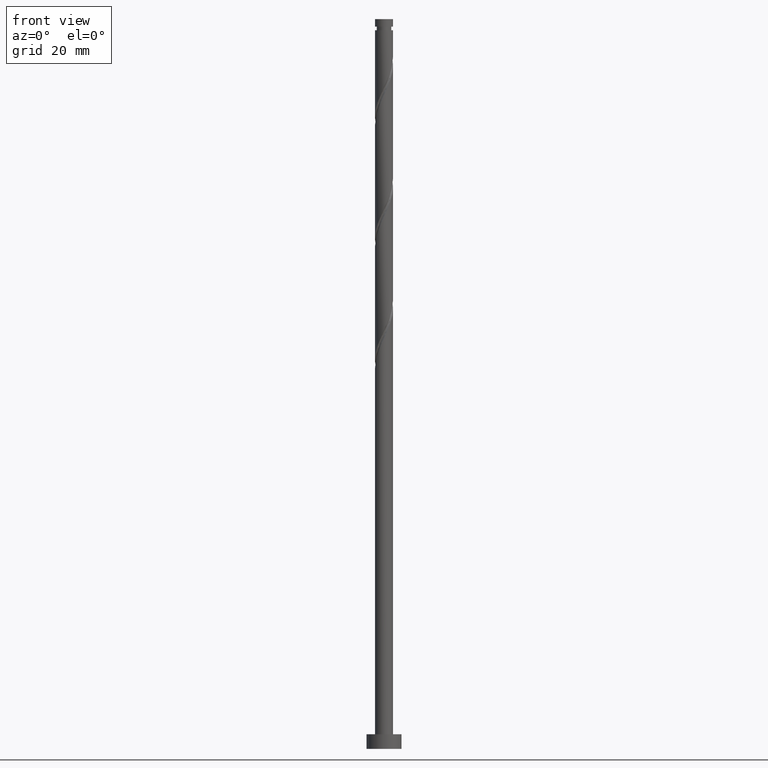
[diagram: clean part render]
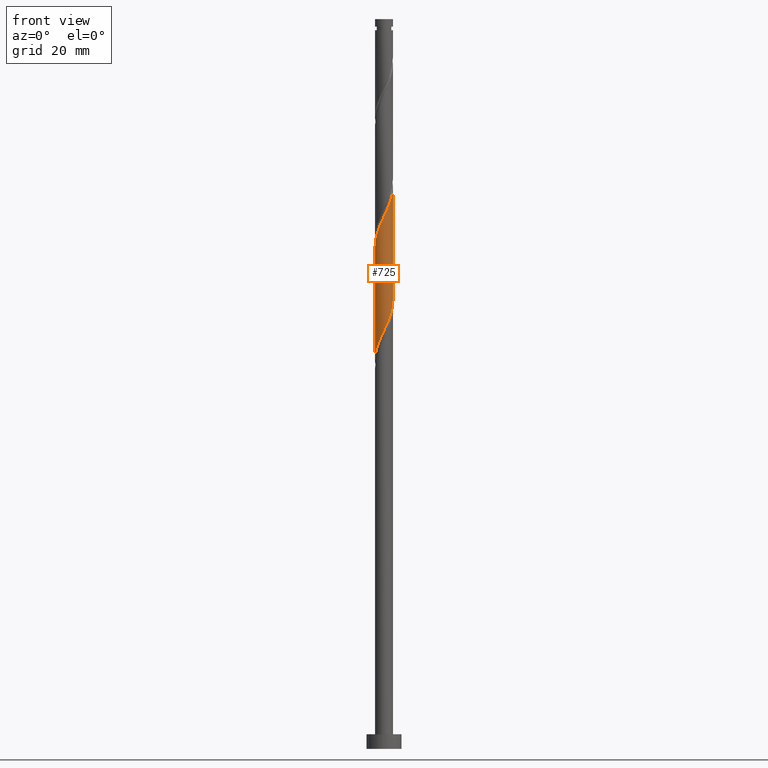
[diagram: same view with one face highlighted and labeled with its STEP entity id]
A machine part, front view. The second image highlights one B-rep face of the part: STEP entity #725.
In plain terms, the highlighted cylindrical surface (edge-blend (fillet) strip) has radius 3.1 mm, axis along (-0, -0, -1).
Its self-contained STEP definition (entity closure, byte-faithful):
#6 = CARTESIAN_POINT ( 'NONE',  ( 2.249877174969360460, -2.165579781819279237, 187.6870312759285753 ) ) ;
#21 = CARTESIAN_POINT ( 'NONE',  ( 0.2480122259768770543, -3.112904275694731826, 182.8793389682362545 ) ) ;
#68 = CARTESIAN_POINT ( 'NONE',  ( 0.000000000000000000, 0.000000000000000000, 250.0000000000000000 ) ) ;
#98 = CARTESIAN_POINT ( 'NONE',  ( 0.1280745435953551115, -3.097353210611092145, 143.6165184554157292 ) ) ;
#107 = CARTESIAN_POINT ( 'NONE',  ( -1.326007432615845527, -2.802089272069598014, 140.4113902502875533 ) ) ;
#119 = CARTESIAN_POINT ( 'NONE',  ( -3.059332338079530089, -0.5004854095583951556, 134.0011338400311161 ) ) ;
#136 = EDGE_CURVE ( 'NONE', #364, #781, #541, .T. ) ;
#137 = CARTESIAN_POINT ( 'NONE',  ( 1.227034829342569244, -2.871596876557147571, 146.0203646092619465 ) ) ;
#157 = CARTESIAN_POINT ( 'NONE',  ( 1.666242669196356774, -2.641082819833930451, 186.0844671733644873 ) ) ;
#160 = CARTESIAN_POINT ( 'NONE',  ( 3.099999999999999645, 4.112883096653824920E-15, 153.7585428954102440 ) ) ;
#178 = CARTESIAN_POINT ( 'NONE',  ( -1.227034829342573019, -2.871596876557151123, 179.6742107631080216 ) ) ;
#242 = CARTESIAN_POINT ( 'NONE',  ( -2.476317086136642143, -1.864900450133393450, 137.2062620451593205 ) ) ;
#275 = CARTESIAN_POINT ( 'NONE',  ( -0.6168922110061065833, -3.037999999999998924, 142.0139543528516697 ) ) ;
#292 = CARTESIAN_POINT ( 'NONE',  ( -3.090207698699935168, -0.2462039376120586376, 172.4626723015696257 ) ) ;
#350 = EDGE_CURVE ( 'NONE', #781, #1571, #1770, .T. ) ;
#363 = CARTESIAN_POINT ( 'NONE',  ( -3.099999999999999201, 3.260394600256485574E-15, 132.9252095620768159 ) ) ;
#364 = VERTEX_POINT ( 'NONE', #1095 ) ;
#368 = CARTESIAN_POINT ( 'NONE',  ( 1.878597541326289866, -2.494504834951285499, 147.6229287118260061 ) ) ;
#371 = VERTEX_POINT ( 'NONE', #1414 ) ;
#396 = CARTESIAN_POINT ( 'NONE',  ( 0.5041613131675897197, -3.081802145527458237, 144.4178005066978301 ) ) ;
#406 = CARTESIAN_POINT ( 'NONE',  ( -0.2480122259768793302, -3.112904275694726053, 142.8152364041337421 ) ) ;
#421 = CARTESIAN_POINT ( 'NONE',  ( 3.099999999999999645, -0.1232967040439853640, 153.4943719797772701 ) ) ;
#430 = CARTESIAN_POINT ( 'NONE',  ( 2.941491420319844341, -0.9785848068434037650, 151.6293389682362545 ) ) ;
#468 = CARTESIAN_POINT ( 'NONE',  ( 3.100000000000005418, 1.600285423061656395E-15, 192.7693658102930954 ) ) ;
#478 = CARTESIAN_POINT ( 'NONE',  ( 2.850659702190538436, -1.218088363915763805, 190.0908774297747073 ) ) ;
#485 = CYLINDRICAL_SURFACE ( 'NONE', #1649, 3.100000000000000089 ) ;
#523 = CARTESIAN_POINT ( 'NONE',  ( -3.099999999999999201, 3.260394600256485574E-15, 132.9252095620768159 ) ) ;
#537 = CARTESIAN_POINT ( 'NONE',  ( -1.958059922082856952, -2.403331300826598849, 138.8088261477234653 ) ) ;
#541 = LINE ( 'NONE', #1523, #682 ) ;
#547 = CARTESIAN_POINT ( 'NONE',  ( -2.702756997303925157, -1.564221118447513215, 136.4049799938773049 ) ) ;
#577 = CARTESIAN_POINT ( 'NONE',  ( 3.090207698699929395, -0.2462039376120615797, 153.2319030708004277 ) ) ;
#600 = CARTESIAN_POINT ( 'NONE',  ( 1.326007432615845305, -2.802089272069604231, 185.2831851220824433 ) ) ;
#609 = CARTESIAN_POINT ( 'NONE',  ( 2.702756997303928266, -1.564221118447518100, 189.2895953784926917 ) ) ;
#643 = EDGE_CURVE ( 'NONE', #371, #1571, #1441, .T. ) ;
#651 = VECTOR ( 'NONE', #863, 1000.000000000000000 ) ;
#656 = FACE_OUTER_BOUND ( 'NONE', #1090, .T. ) ;
#682 = VECTOR ( 'NONE', #1107, 1000.000000000000000 ) ;
#692 = ORIENTED_EDGE ( 'NONE', *, *, #643, .T. ) ;
#696 = CARTESIAN_POINT ( 'NONE',  ( -1.666242669196356552, -2.641082819833925566, 139.6101081990054809 ) ) ;
#725 = ADVANCED_FACE ( 'NONE', ( #656 ), #485, .T. ) ;
#741 = CARTESIAN_POINT ( 'NONE',  ( -3.100000000000000089, 0.000000000000000000, 250.0000000000000000 ) ) ;
#743 = CARTESIAN_POINT ( 'NONE',  ( -1.552816185334434218, -2.683050855754219199, 178.8729287118260061 ) ) ;
#756 = CARTESIAN_POINT ( 'NONE',  ( 0.9857721960353340585, -2.963095724305278011, 184.4819030708003140 ) ) ;
#764 = CARTESIAN_POINT ( 'NONE',  ( -1.878597541326294751, -2.494504834951287275, 178.0716466605439621 ) ) ;
#781 = VERTEX_POINT ( 'NONE', #941 ) ;
#810 = CARTESIAN_POINT ( 'NONE',  ( 2.420982992632351394, -1.972441239494201248, 149.2254928143900656 ) ) ;
#841 = CARTESIAN_POINT ( 'NONE',  ( 2.621826352477048871, -1.654093884112051382, 150.0267748656721096 ) ) ;
#853 = CARTESIAN_POINT ( 'NONE',  ( -2.850659702190533551, -1.218088363915760253, 135.6036979425952325 ) ) ;
#863 = DIRECTION ( 'NONE',  ( -0.000000000000000000, -0.000000000000000000, -1.000000000000000000 ) ) ;
#871 = CARTESIAN_POINT ( 'NONE',  ( -2.621826352477054645, -1.654093884112052271, 175.6678005066978017 ) ) ;
#893 =( BOUNDED_CURVE ( )  B_SPLINE_CURVE ( 2, ( #1331, #1298, #292, #1016, #1177, #1156, #871, #1701, #1442, #764, #743, #178, #1309, #1431, #1045, #21, #1463, #756, #600, #157, #1185, #6, #1597, #609, #478, #1166, #1036, #1732, #468 ),
 .UNSPECIFIED., .F., .T. ) 
 B_SPLINE_CURVE_WITH_KNOTS ( ( 3, 2, 2, 2, 2, 2, 2, 2, 2, 2, 2, 2, 2, 2, 3 ),
 ( 0.3045271625973834939, 0.3076923076923077094, 0.3173076923076922906, 0.3269230769230768718, 0.3365384615384615641, 0.3461538461538461453, 0.3557692307692307265, 0.3653846153846154188, 0.3750000000000000000, 0.3846153846153845812, 0.3942307692307692735, 0.4038461538461538547, 0.4134615384615384359, 0.4230769230769231282, 0.4295271625973833829 ),
 .UNSPECIFIED. ) 
 CURVE ( )  GEOMETRIC_REPRESENTATION_ITEM ( )  RATIONAL_B_SPLINE_CURVE ( ( 0.9061636035682940626, 0.9069090390690828229, 0.9090909090909391477, 0.9024626128164425776, 0.9090909090909391477, 0.9024626128164425776, 0.9090909090909391477, 0.9024626128164425776, 0.9090909090909391477, 0.9024626128164425776, 0.9090909090909391477, 0.9024626128164425776, 0.9090909090909391477, 0.9024626128164425776, 0.9090909090909391477, 0.9024626128164425776, 0.9090909090909391477, 0.9024626128164425776, 0.9090909090909391477, 0.9024626128164425776, 0.9090909090909391477, 0.9024626128164425776, 0.9090909090909391477, 0.9024626128164425776, 0.9090909090909391477, 0.9024626128164425776, 0.9090909090909391477, 0.9046444828382991243, 0.9061636035682938406 ) ) 
 REPRESENTATION_ITEM ( '' )  );
#941 = CARTESIAN_POINT ( 'NONE',  ( 3.099999999999999645, 4.112883096653824131E-15, 153.7585428954102156 ) ) ;
#957 = CARTESIAN_POINT ( 'NONE',  ( 0.8655980712550801481, -2.976699511042302237, 145.2190825579798741 ) ) ;
#974 = CARTESIAN_POINT ( 'NONE',  ( -3.100000000000000533, -0.2518949594648391410, 133.4649102994251848 ) ) ;
#977 = CARTESIAN_POINT ( 'NONE',  ( 2.822669712321746793, -1.335746528729901739, 150.8280569169541820 ) ) ;
#1016 = CARTESIAN_POINT ( 'NONE',  ( -3.060313128317948994, -0.6214230849569027937, 173.2639543528516413 ) ) ;
#1036 = CARTESIAN_POINT ( 'NONE',  ( 3.059332338079534974, -0.5004854095583980422, 191.6934415323387952 ) ) ;
#1045 = CARTESIAN_POINT ( 'NONE',  ( -0.1280745435953581091, -3.097353210611097918, 182.0780569169542389 ) ) ;
#1061 = DIRECTION ( 'NONE',  ( -0.000000000000000000, -0.000000000000000000, -1.000000000000000000 ) ) ;
#1068 = ORIENTED_EDGE ( 'NONE', *, *, #1832, .F. ) ;
#1090 = EDGE_LOOP ( 'NONE', ( #1555, #1068, #692, #1237 ) ) ;
#1095 = CARTESIAN_POINT ( 'NONE',  ( 3.100000000000005418, 1.600285423061656395E-15, 192.7693658102930954 ) ) ;
#1104 = CARTESIAN_POINT ( 'NONE',  ( -2.998562407077144165, -0.8719556093840072908, 134.8024158913131885 ) ) ;
#1107 = DIRECTION ( 'NONE',  ( -0.000000000000000000, -0.000000000000000000, -1.000000000000000000 ) ) ;
#1112 = CARTESIAN_POINT ( 'NONE',  ( -0.9857721960353348356, -2.963095724305272238, 141.2126723015696257 ) ) ;
#1156 = CARTESIAN_POINT ( 'NONE',  ( -2.822669712321751234, -1.335746528729903071, 174.8665184554157292 ) ) ;
#1166 = CARTESIAN_POINT ( 'NONE',  ( 2.998562407077147274, -0.8719556093840112876, 190.8921594810567797 ) ) ;
#1177 = CARTESIAN_POINT ( 'NONE',  ( -2.941491420319850114, -0.9785848068434026548, 174.0652364041336568 ) ) ;
#1185 = CARTESIAN_POINT ( 'NONE',  ( 1.958059922082859172, -2.403331300826604178, 186.8857492246465029 ) ) ;
#1237 = ORIENTED_EDGE ( 'NONE', *, *, #350, .F. ) ;
#1251 = CARTESIAN_POINT ( 'NONE',  ( -2.249877174969357796, -2.165579781819274352, 138.0075440964414213 ) ) ;
#1298 = CARTESIAN_POINT ( 'NONE',  ( -3.100000000000004086, -0.1232967040439890555, 172.2002033925926696 ) ) ;
#1309 = CARTESIAN_POINT ( 'NONE',  ( -0.8655980712550831457, -2.976699511042307567, 180.4754928143900372 ) ) ;
#1331 = CARTESIAN_POINT ( 'NONE',  ( -3.100000000000005418, 6.715216401445643760E-15, 171.9360324769597241 ) ) ;
#1367 = CARTESIAN_POINT ( 'NONE',  ( 1.552816185334429333, -2.683050855754215647, 146.8216466605439336 ) ) ;
#1414 = CARTESIAN_POINT ( 'NONE',  ( -3.100000000000005418, 6.715216401445643760E-15, 171.9360324769597526 ) ) ;
#1431 = CARTESIAN_POINT ( 'NONE',  ( -0.5041613131675932724, -3.081802145527462677, 181.2767748656721380 ) ) ;
#1441 = LINE ( 'NONE', #741, #651 ) ;
#1442 = CARTESIAN_POINT ( 'NONE',  ( -2.149790266979325626, -2.233473037222744484, 177.2703646092618897 ) ) ;
#1463 = CARTESIAN_POINT ( 'NONE',  ( 0.6168922110061061392, -3.038000000000004697, 183.6806210195182985 ) ) ;
#1475 = DIRECTION ( 'NONE',  ( -1.000000000000000000, 0.000000000000000000, 0.000000000000000000 ) ) ;
#1523 = CARTESIAN_POINT ( 'NONE',  ( 3.100000000000000089, 3.796405077356794918E-16, 250.0000000000000000 ) ) ;
#1555 = ORIENTED_EDGE ( 'NONE', *, *, #136, .F. ) ;
#1571 = VERTEX_POINT ( 'NONE', #363 ) ;
#1597 = CARTESIAN_POINT ( 'NONE',  ( 2.476317086136644807, -1.864900450133398335, 188.4883133272106761 ) ) ;
#1649 = AXIS2_PLACEMENT_3D ( 'NONE', #68, #1061, #1475 ) ;
#1695 = CARTESIAN_POINT ( 'NONE',  ( 3.060313128317944109, -0.6214230849569032378, 152.4306210195183553 ) ) ;
#1701 = CARTESIAN_POINT ( 'NONE',  ( -2.420982992632356723, -1.972441239494201470, 176.4690825579798457 ) ) ;
#1732 = CARTESIAN_POINT ( 'NONE',  ( 3.100000000000004974, -0.2518949594648384749, 192.2296650729447265 ) ) ;
#1770 =( BOUNDED_CURVE ( )  B_SPLINE_CURVE ( 2, ( #160, #421, #577, #1695, #430, #977, #841, #810, #1779, #368, #1367, #137, #957, #396, #98, #406, #275, #1112, #107, #696, #537, #1251, #242, #547, #853, #1104, #119, #974, #523 ),
 .UNSPECIFIED., .F., .T. ) 
 B_SPLINE_CURVE_WITH_KNOTS ( ( 3, 2, 2, 2, 2, 2, 2, 2, 2, 2, 2, 2, 2, 2, 3 ),
 ( 0.8045271625973833274, 0.8076923076923077094, 0.8173076923076922906, 0.8269230769230768718, 0.8365384615384615641, 0.8461538461538461453, 0.8557692307692307265, 0.8653846153846154188, 0.8750000000000000000, 0.8846153846153845812, 0.8942307692307692735, 0.9038461538461538547, 0.9134615384615384359, 0.9230769230769231282, 0.9295271625973833274 ),
 .UNSPECIFIED. ) 
 CURVE ( )  GEOMETRIC_REPRESENTATION_ITEM ( )  RATIONAL_B_SPLINE_CURVE ( ( 0.9061636035682864021, 0.9069090390690750514, 0.9090909090909315982, 0.9024626128164350281, 0.9090909090909315982, 0.9024626128164350281, 0.9090909090909315982, 0.9024626128164350281, 0.9090909090909315982, 0.9024626128164350281, 0.9090909090909315982, 0.9024626128164350281, 0.9090909090909315982, 0.9024626128164350281, 0.9090909090909315982, 0.9024626128164350281, 0.9090909090909315982, 0.9024626128164350281, 0.9090909090909315982, 0.9024626128164350281, 0.9090909090909315982, 0.9024626128164350281, 0.9090909090909315982, 0.9024626128164350281, 0.9090909090909315982, 0.9024626128164350281, 0.9090909090909315982, 0.9046444828382915748, 0.9061636035682864021 ) ) 
 REPRESENTATION_ITEM ( '' )  );
#1779 = CARTESIAN_POINT ( 'NONE',  ( 2.149790266979321185, -2.233473037222740931, 148.4242107631080785 ) ) ;
#1832 = EDGE_CURVE ( 'NONE', #371, #364, #893, .T. ) ;